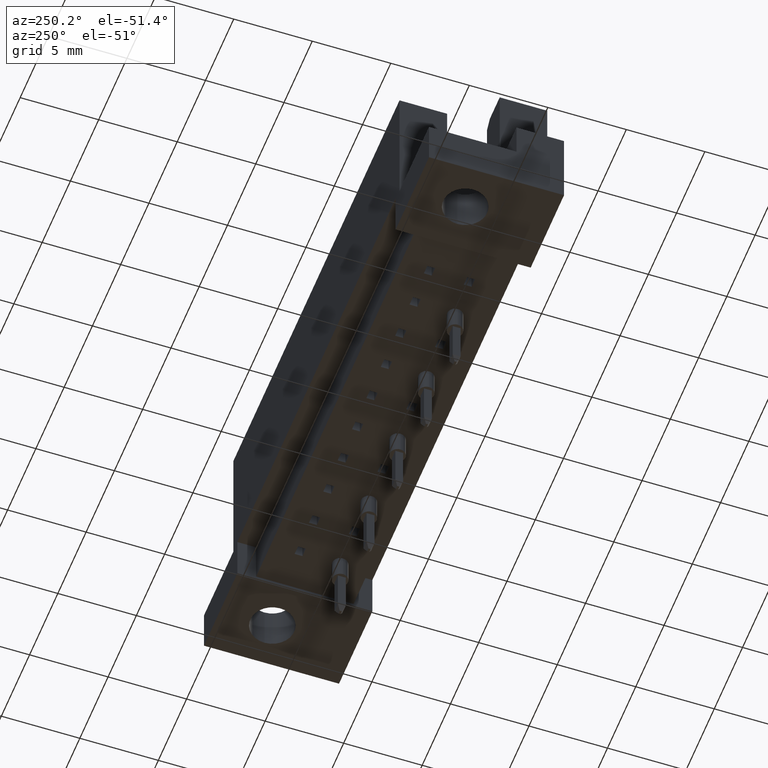
[diagram: clean part render]
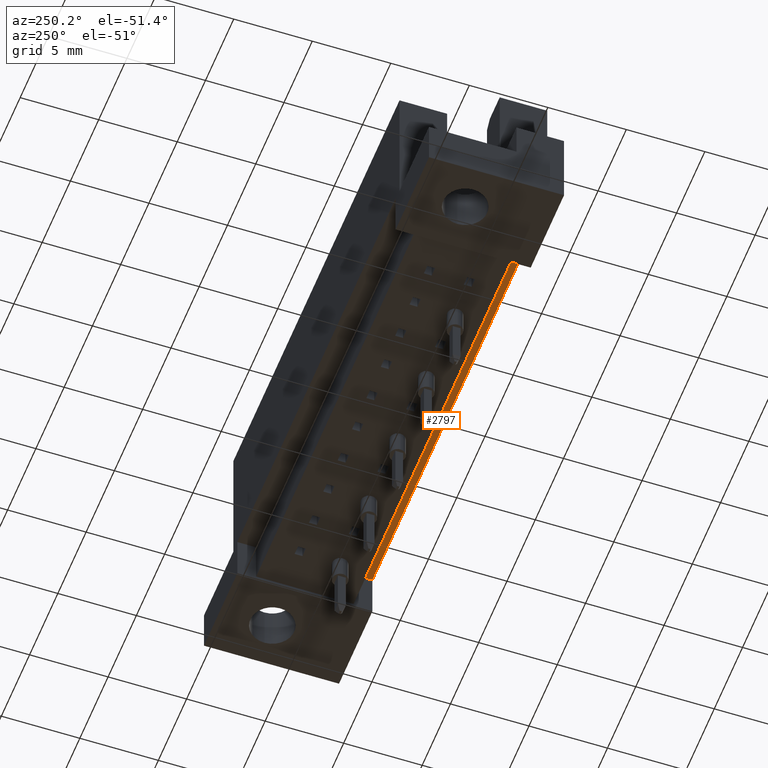
[diagram: same view with one face highlighted and labeled with its STEP entity id]
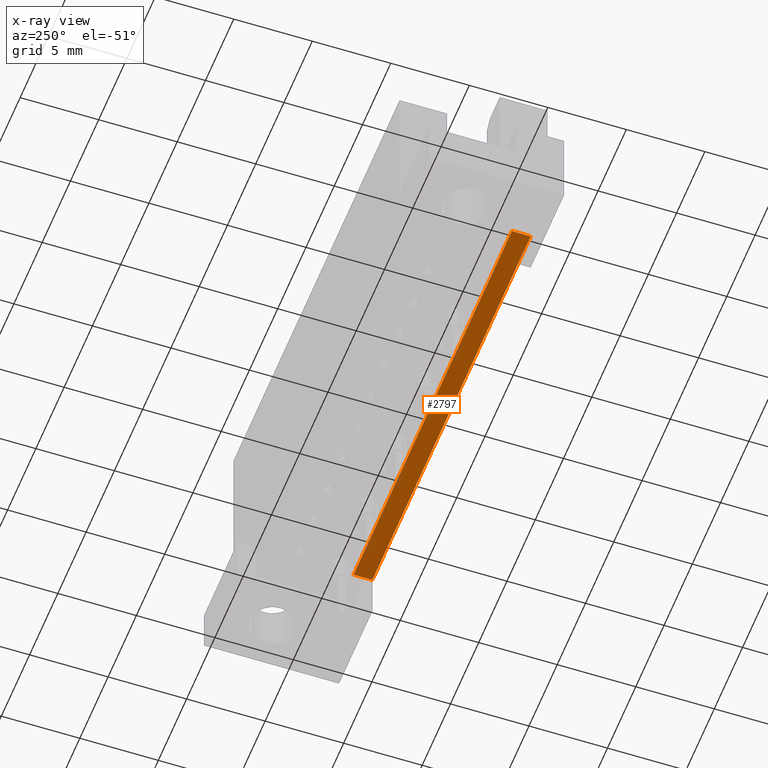
[diagram: x-ray of the same camera — body ghosted, the highlighted face saturated]
A machine part, auxiliary view. The second image highlights one B-rep face of the part: STEP entity #2797.
The next image is the same camera in x-ray: the body ghosted, the highlighted face saturated — about 5% of this face is hidden behind the body in this view.
In plain terms, the highlighted planar face has unit normal (0, 0, 1).
Its self-contained STEP definition (entity closure, byte-faithful):
#229 = VERTEX_POINT ( 'NONE', #3783 ) ;
#234 = DIRECTION ( 'NONE',  ( 1.000000000000000000, 0.0000000000000000000, 0.0000000000000000000 ) ) ;
#283 = FACE_OUTER_BOUND ( 'NONE', #1912, .T. ) ;
#710 = EDGE_CURVE ( 'NONE', #1022, #4124, #2558, .T. ) ;
#810 = LINE ( 'NONE', #4482, #4443 ) ;
#818 = CARTESIAN_POINT ( 'NONE',  ( -14.00000000000000533, -4.300000000000001599, 3.000000000000000000 ) ) ;
#862 = ORIENTED_EDGE ( 'NONE', *, *, #710, .F. ) ;
#890 = DIRECTION ( 'NONE',  ( -0.0000000000000000000, 1.000000000000000000, -0.0000000000000000000 ) ) ;
#1022 = VERTEX_POINT ( 'NONE', #2670 ) ;
#1228 = DIRECTION ( 'NONE',  ( 0.0000000000000000000, -1.000000000000000000, 0.0000000000000000000 ) ) ;
#1393 = CARTESIAN_POINT ( 'NONE',  ( 14.00000000000000533, -4.299999999999998046, 3.000000000000000000 ) ) ;
#1411 = DIRECTION ( 'NONE',  ( 1.000000000000000000, 1.239088197126290324E-16, 0.0000000000000000000 ) ) ;
#1637 = CARTESIAN_POINT ( 'NONE',  ( -14.00000000000000533, -3.099999999999988098, 3.000000000000000000 ) ) ;
#1833 = CARTESIAN_POINT ( 'NONE',  ( -14.00000000000000533, -3.099999999999988098, 3.000000000000000000 ) ) ;
#1896 = EDGE_CURVE ( 'NONE', #229, #1022, #810, .T. ) ;
#1912 = EDGE_LOOP ( 'NONE', ( #3221, #4508, #4452, #862 ) ) ;
#1941 = EDGE_CURVE ( 'NONE', #2082, #229, #2934, .T. ) ;
#2082 = VERTEX_POINT ( 'NONE', #818 ) ;
#2546 = CARTESIAN_POINT ( 'NONE',  ( -14.00000000000000533, -4.300000000000001599, 3.000000000000000000 ) ) ;
#2558 = LINE ( 'NONE', #4123, #3681 ) ;
#2670 = CARTESIAN_POINT ( 'NONE',  ( 14.00000000000000533, -3.099999999999981437, 3.000000000000000000 ) ) ;
#2797 = ADVANCED_FACE ( 'NONE', ( #283 ), #4620, .F. ) ;
#2828 = AXIS2_PLACEMENT_3D ( 'NONE', #1393, #2965, #234 ) ;
#2923 = VECTOR ( 'NONE', #1228, 1000.000000000000000 ) ;
#2934 = LINE ( 'NONE', #2546, #2938 ) ;
#2938 = VECTOR ( 'NONE', #1411, 1000.000000000000000 ) ;
#2965 = DIRECTION ( 'NONE',  ( -0.0000000000000000000, 0.0000000000000000000, 1.000000000000000000 ) ) ;
#3221 = ORIENTED_EDGE ( 'NONE', *, *, #1896, .F. ) ;
#3617 = LINE ( 'NONE', #1637, #2923 ) ;
#3681 = VECTOR ( 'NONE', #4599, 1000.000000000000000 ) ;
#3783 = CARTESIAN_POINT ( 'NONE',  ( 14.00000000000000533, -4.299999999999998046, 2.999999999999999112 ) ) ;
#4123 = CARTESIAN_POINT ( 'NONE',  ( 14.00000000000000533, -3.099999999999981437, 3.000000000000000000 ) ) ;
#4124 = VERTEX_POINT ( 'NONE', #1833 ) ;
#4305 = EDGE_CURVE ( 'NONE', #4124, #2082, #3617, .T. ) ;
#4443 = VECTOR ( 'NONE', #890, 1000.000000000000000 ) ;
#4452 = ORIENTED_EDGE ( 'NONE', *, *, #4305, .F. ) ;
#4482 = CARTESIAN_POINT ( 'NONE',  ( 14.00000000000000533, -3.099999999999981437, 3.000000000000000000 ) ) ;
#4508 = ORIENTED_EDGE ( 'NONE', *, *, #1941, .F. ) ;
#4599 = DIRECTION ( 'NONE',  ( -1.000000000000000000, -2.478176394252580648E-16, 0.0000000000000000000 ) ) ;
#4620 = PLANE ( 'NONE',  #2828 ) ;